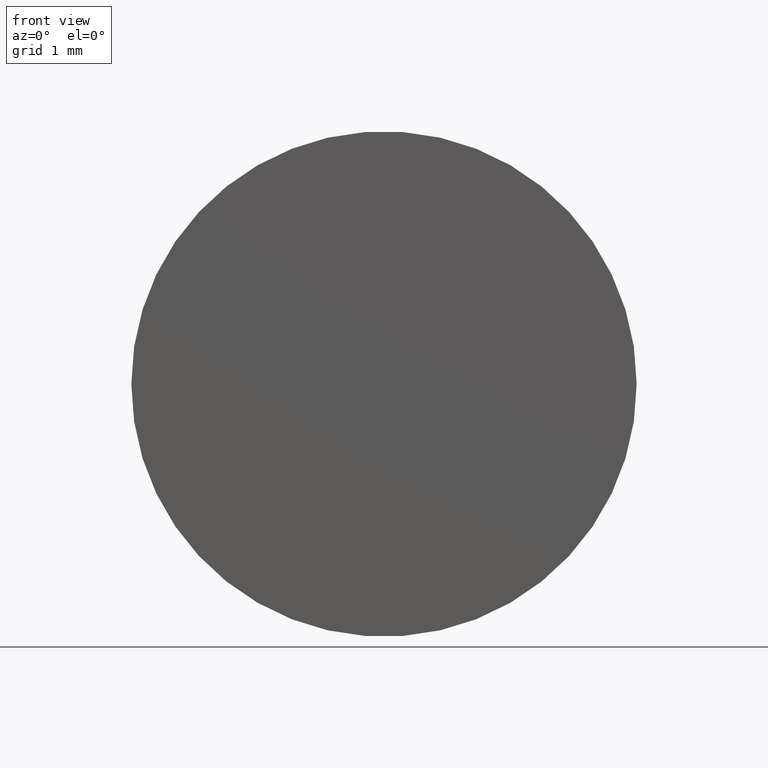
[diagram: clean part render]
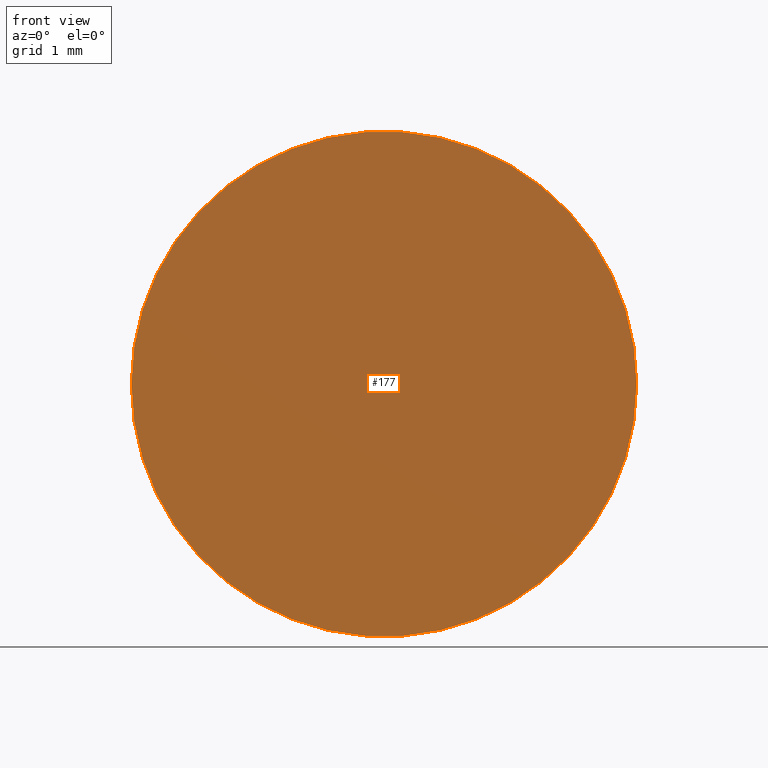
[diagram: same view with one face highlighted and labeled with its STEP entity id]
A machine part, front view. The second image highlights one B-rep face of the part: STEP entity #177.
In plain terms, the highlighted planar face has unit normal (-0, -1, 0).
Its self-contained STEP definition (entity closure, byte-faithful):
#4 = DIRECTION ( 'NONE',  ( -1.000000000000000000, 6.445509469196585650E-18, 0.000000000000000000 ) ) ;
#14 = FACE_OUTER_BOUND ( 'NONE', #189, .T. ) ;
#21 = ORIENTED_EDGE ( 'NONE', *, *, #196, .F. ) ;
#23 = CIRCLE ( 'NONE', #41, 3.000000000000000000 ) ;
#30 = CARTESIAN_POINT ( 'NONE',  ( 3.000000000000000000, -4.530173974017915390E-16, 3.673940397442059868E-16 ) ) ;
#31 = DIRECTION ( 'NONE',  ( -1.000000000000000000, 6.445509469196585650E-18, 0.000000000000000000 ) ) ;
#41 = AXIS2_PLACEMENT_3D ( 'NONE', #62, #171, #4 ) ;
#44 = AXIS2_PLACEMENT_3D ( 'NONE', #77, #141, #183 ) ;
#45 = CARTESIAN_POINT ( 'NONE',  ( -6.018531076210112041E-33, -4.336808689942017736E-16, 0.000000000000000000 ) ) ;
#48 = ORIENTED_EDGE ( 'NONE', *, *, #104, .F. ) ;
#62 = CARTESIAN_POINT ( 'NONE',  ( -6.018531076210112041E-33, -4.336808689942017736E-16, 0.000000000000000000 ) ) ;
#77 = CARTESIAN_POINT ( 'NONE',  ( -1.246337769525088082E-33, -1.933652840758978761E-16, 0.000000000000000000 ) ) ;
#88 = CARTESIAN_POINT ( 'NONE',  ( -3.000000000000000000, -4.143443405866120082E-16, 0.000000000000000000 ) ) ;
#93 = VERTEX_POINT ( 'NONE', #88 ) ;
#104 = EDGE_CURVE ( 'NONE', #118, #93, #23, .T. ) ;
#118 = VERTEX_POINT ( 'NONE', #30 ) ;
#141 = DIRECTION ( 'NONE',  ( -6.445509469196587961E-18, -1.000000000000000000, 0.000000000000000000 ) ) ;
#146 = CIRCLE ( 'NONE', #163, 3.000000000000000000 ) ;
#157 = PLANE ( 'NONE',  #44 ) ;
#163 = AXIS2_PLACEMENT_3D ( 'NONE', #45, #172, #31 ) ;
#171 = DIRECTION ( 'NONE',  ( 6.445509469196587961E-18, 1.000000000000000000, -0.000000000000000000 ) ) ;
#172 = DIRECTION ( 'NONE',  ( 6.445509469196587961E-18, 1.000000000000000000, -0.000000000000000000 ) ) ;
#177 = ADVANCED_FACE ( 'NONE', ( #14 ), #157, .T. ) ;
#183 = DIRECTION ( 'NONE',  ( 1.000000000000000000, -6.445509469196587961E-18, 0.000000000000000000 ) ) ;
#189 = EDGE_LOOP ( 'NONE', ( #21, #48 ) ) ;
#196 = EDGE_CURVE ( 'NONE', #93, #118, #146, .T. ) ;